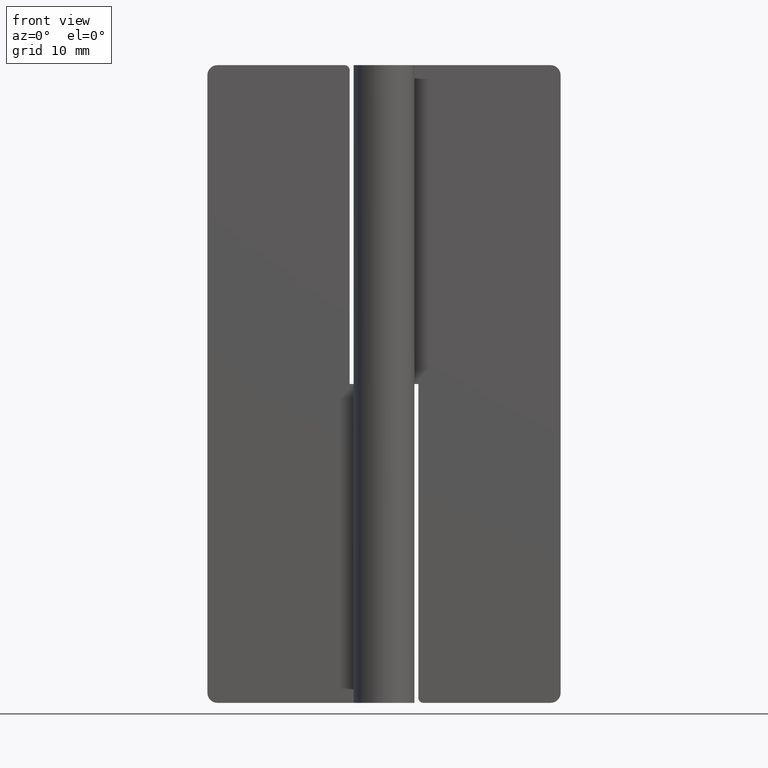
[diagram: clean part render]
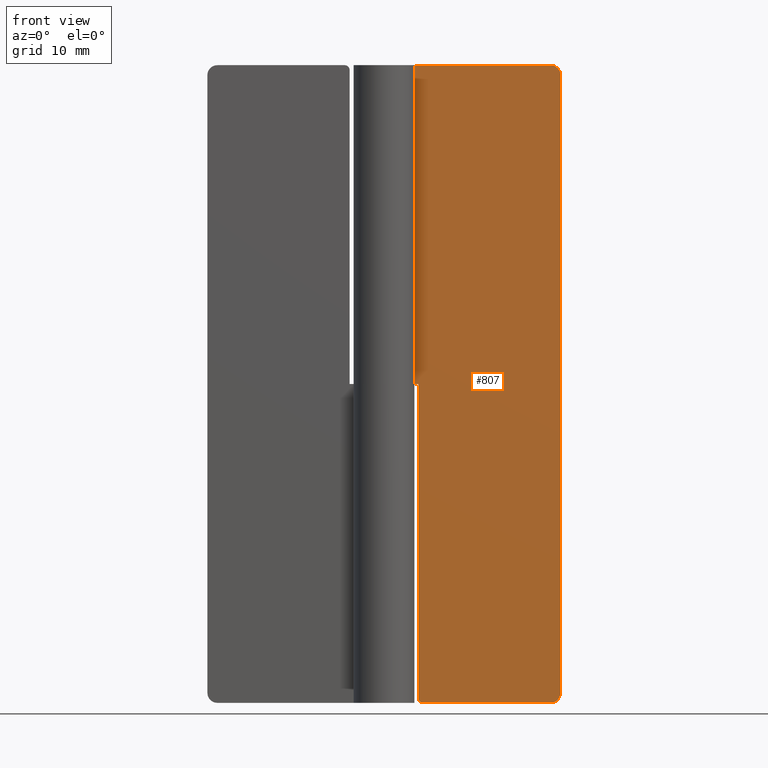
[diagram: same view with one face highlighted and labeled with its STEP entity id]
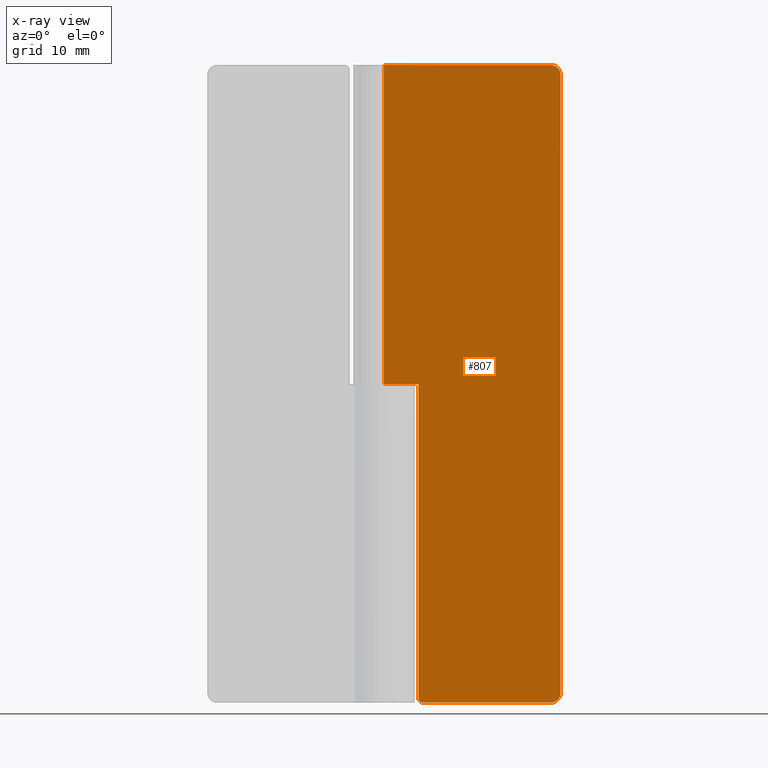
[diagram: x-ray of the same camera — body ghosted, the highlighted face saturated]
A machine part, front view. The second image highlights one B-rep face of the part: STEP entity #807.
The next image is the same camera in x-ray: the body ghosted, the highlighted face saturated — about 0% of this face is hidden behind the body in this view.
In plain terms, the highlighted face is a freeform B-spline surface patch.
Its self-contained STEP definition (entity closure, byte-faithful):
#328=CARTESIAN_POINT('',(18.0,1.500000000000055,64.0));
#329=VERTEX_POINT('',#328);
#330=CARTESIAN_POINT('',(17.0,1.500000000000055,65.0));
#331=VERTEX_POINT('',#330);
#332=CARTESIAN_POINT('',(18.0,1.500000000000055,64.0));
#333=CARTESIAN_POINT('',(18.000000000000007,1.500000000000055,65.0));
#334=CARTESIAN_POINT('',(17.0,1.500000000000055,65.0));
#342=(BOUNDED_CURVE()B_SPLINE_CURVE(2,(#332,#333,#334),.UNSPECIFIED.,.F.,.U.)CURVE()GEOMETRIC_REPRESENTATION_ITEM()QUASI_UNIFORM_CURVE()RATIONAL_B_SPLINE_CURVE((1.0,0.707106781186548,1.0))REPRESENTATION_ITEM(''));
#343=EDGE_CURVE('',#329,#331,#342,.T.);
#389=CARTESIAN_POINT('',(17.0,1.500000000000055,0.0));
#390=VERTEX_POINT('',#389);
#391=CARTESIAN_POINT('',(18.0,1.500000000000055,1.0));
#392=VERTEX_POINT('',#391);
#393=CARTESIAN_POINT('',(17.0,1.500000000000055,0.0));
#394=CARTESIAN_POINT('',(18.000000000000007,1.500000000000055,0.0));
#395=CARTESIAN_POINT('',(18.0,1.500000000000055,1.0));
#403=(BOUNDED_CURVE()B_SPLINE_CURVE(2,(#393,#394,#395),.UNSPECIFIED.,.F.,.U.)CURVE()GEOMETRIC_REPRESENTATION_ITEM()QUASI_UNIFORM_CURVE()RATIONAL_B_SPLINE_CURVE((1.0,0.707106781186548,1.0))REPRESENTATION_ITEM(''));
#404=EDGE_CURVE('',#390,#392,#403,.T.);
#450=CARTESIAN_POINT('',(3.499999999999901,1.500000000000000,0.499999999999945));
#451=VERTEX_POINT('',#450);
#452=CARTESIAN_POINT('',(3.999999999999901,1.500000000000055,0.0));
#453=VERTEX_POINT('',#452);
#454=CARTESIAN_POINT('',(3.499999999999901,1.500000000000000,0.499999999999945));
#455=CARTESIAN_POINT('',(3.499999999999955,1.500000000000055,0.0));
#456=CARTESIAN_POINT('',(3.999999999999901,1.500000000000055,0.0));
#464=(BOUNDED_CURVE()B_SPLINE_CURVE(2,(#454,#455,#456),.UNSPECIFIED.,.F.,.U.)CURVE()GEOMETRIC_REPRESENTATION_ITEM()QUASI_UNIFORM_CURVE()RATIONAL_B_SPLINE_CURVE((1.0,0.707106781186587,1.0))REPRESENTATION_ITEM(''));
#465=EDGE_CURVE('',#451,#453,#464,.T.);
#510=CARTESIAN_POINT('',(3.499999999999901,1.499999999999946,32.500000000000000));
#511=VERTEX_POINT('',#510);
#512=CARTESIAN_POINT('',(3.499999999999901,1.500000000000000,0.499999999999945));
#513=CARTESIAN_POINT('',(3.499999999999901,1.499999999999946,32.500000000000000));
#514=QUASI_UNIFORM_CURVE('',1,(#512,#513),.UNSPECIFIED.,.F.,.U.);
#515=EDGE_CURVE('',#451,#511,#514,.T.);
#559=CARTESIAN_POINT('',(0.0,1.500000000000000,32.500000000000000));
#560=VERTEX_POINT('',#559);
#561=CARTESIAN_POINT('',(3.499999999999901,1.499999999999946,32.500000000000000));
#562=CARTESIAN_POINT('',(0.0,1.500000000000000,32.500000000000000));
#563=QUASI_UNIFORM_CURVE('',1,(#561,#562),.UNSPECIFIED.,.F.,.U.);
#564=EDGE_CURVE('',#511,#560,#563,.T.);
#600=CARTESIAN_POINT('',(0.0,1.500000000000000,65.0));
#601=VERTEX_POINT('',#600);
#602=CARTESIAN_POINT('',(17.0,1.500000000000055,65.0));
#603=CARTESIAN_POINT('',(0.0,1.500000000000000,65.0));
#604=QUASI_UNIFORM_CURVE('',1,(#602,#603),.UNSPECIFIED.,.F.,.U.);
#605=EDGE_CURVE('',#331,#601,#604,.T.);
#709=CARTESIAN_POINT('',(0.0,1.500000000000000,65.0));
#710=CARTESIAN_POINT('',(0.0,1.500000000000000,32.500000000000000));
#711=QUASI_UNIFORM_CURVE('',1,(#709,#710),.UNSPECIFIED.,.F.,.U.);
#712=EDGE_CURVE('',#601,#560,#711,.T.);
#757=CARTESIAN_POINT('',(17.0,1.500000000000055,0.0));
#758=CARTESIAN_POINT('',(3.999999999999901,1.500000000000055,0.0));
#759=QUASI_UNIFORM_CURVE('',1,(#757,#758),.UNSPECIFIED.,.F.,.U.);
#760=EDGE_CURVE('',#390,#453,#759,.T.);
#782=CARTESIAN_POINT('',(18.0,1.500000000000055,64.0));
#783=CARTESIAN_POINT('',(18.0,1.500000000000055,1.0));
#784=QUASI_UNIFORM_CURVE('',1,(#782,#783),.UNSPECIFIED.,.F.,.U.);
#785=EDGE_CURVE('',#329,#392,#784,.T.);
#791=CARTESIAN_POINT('',(-0.899099965112508,1.500000000000000,68.246749874017397));
#792=CARTESIAN_POINT('',(-0.899099965112508,1.500000000000000,-3.246751617453247));
#793=CARTESIAN_POINT('',(18.899100447910129,1.500000000000000,68.246749874017397));
#794=CARTESIAN_POINT('',(18.899100447910129,1.500000000000000,-3.246751617453247));
#795=B_SPLINE_SURFACE_WITH_KNOTS('',1,1,((#791,#793),(#792,#794)),.UNSPECIFIED.,.F.,.F.,.U.,(2,2),(2,2),(0.0,71.493501491470639),(0.0,19.798200413022641),.UNSPECIFIED.);
#796=ORIENTED_EDGE('',*,*,#785,.F.);
#797=ORIENTED_EDGE('',*,*,#343,.T.);
#798=ORIENTED_EDGE('',*,*,#605,.T.);
#799=ORIENTED_EDGE('',*,*,#712,.T.);
#800=ORIENTED_EDGE('',*,*,#564,.F.);
#801=ORIENTED_EDGE('',*,*,#515,.F.);
#802=ORIENTED_EDGE('',*,*,#465,.T.);
#803=ORIENTED_EDGE('',*,*,#760,.F.);
#804=ORIENTED_EDGE('',*,*,#404,.T.);
#805=EDGE_LOOP('',(#796,#797,#798,#799,#800,#801,#802,#803,#804));
#806=FACE_OUTER_BOUND('',#805,.T.);
#807=ADVANCED_FACE('',(#806),#795,.T.);